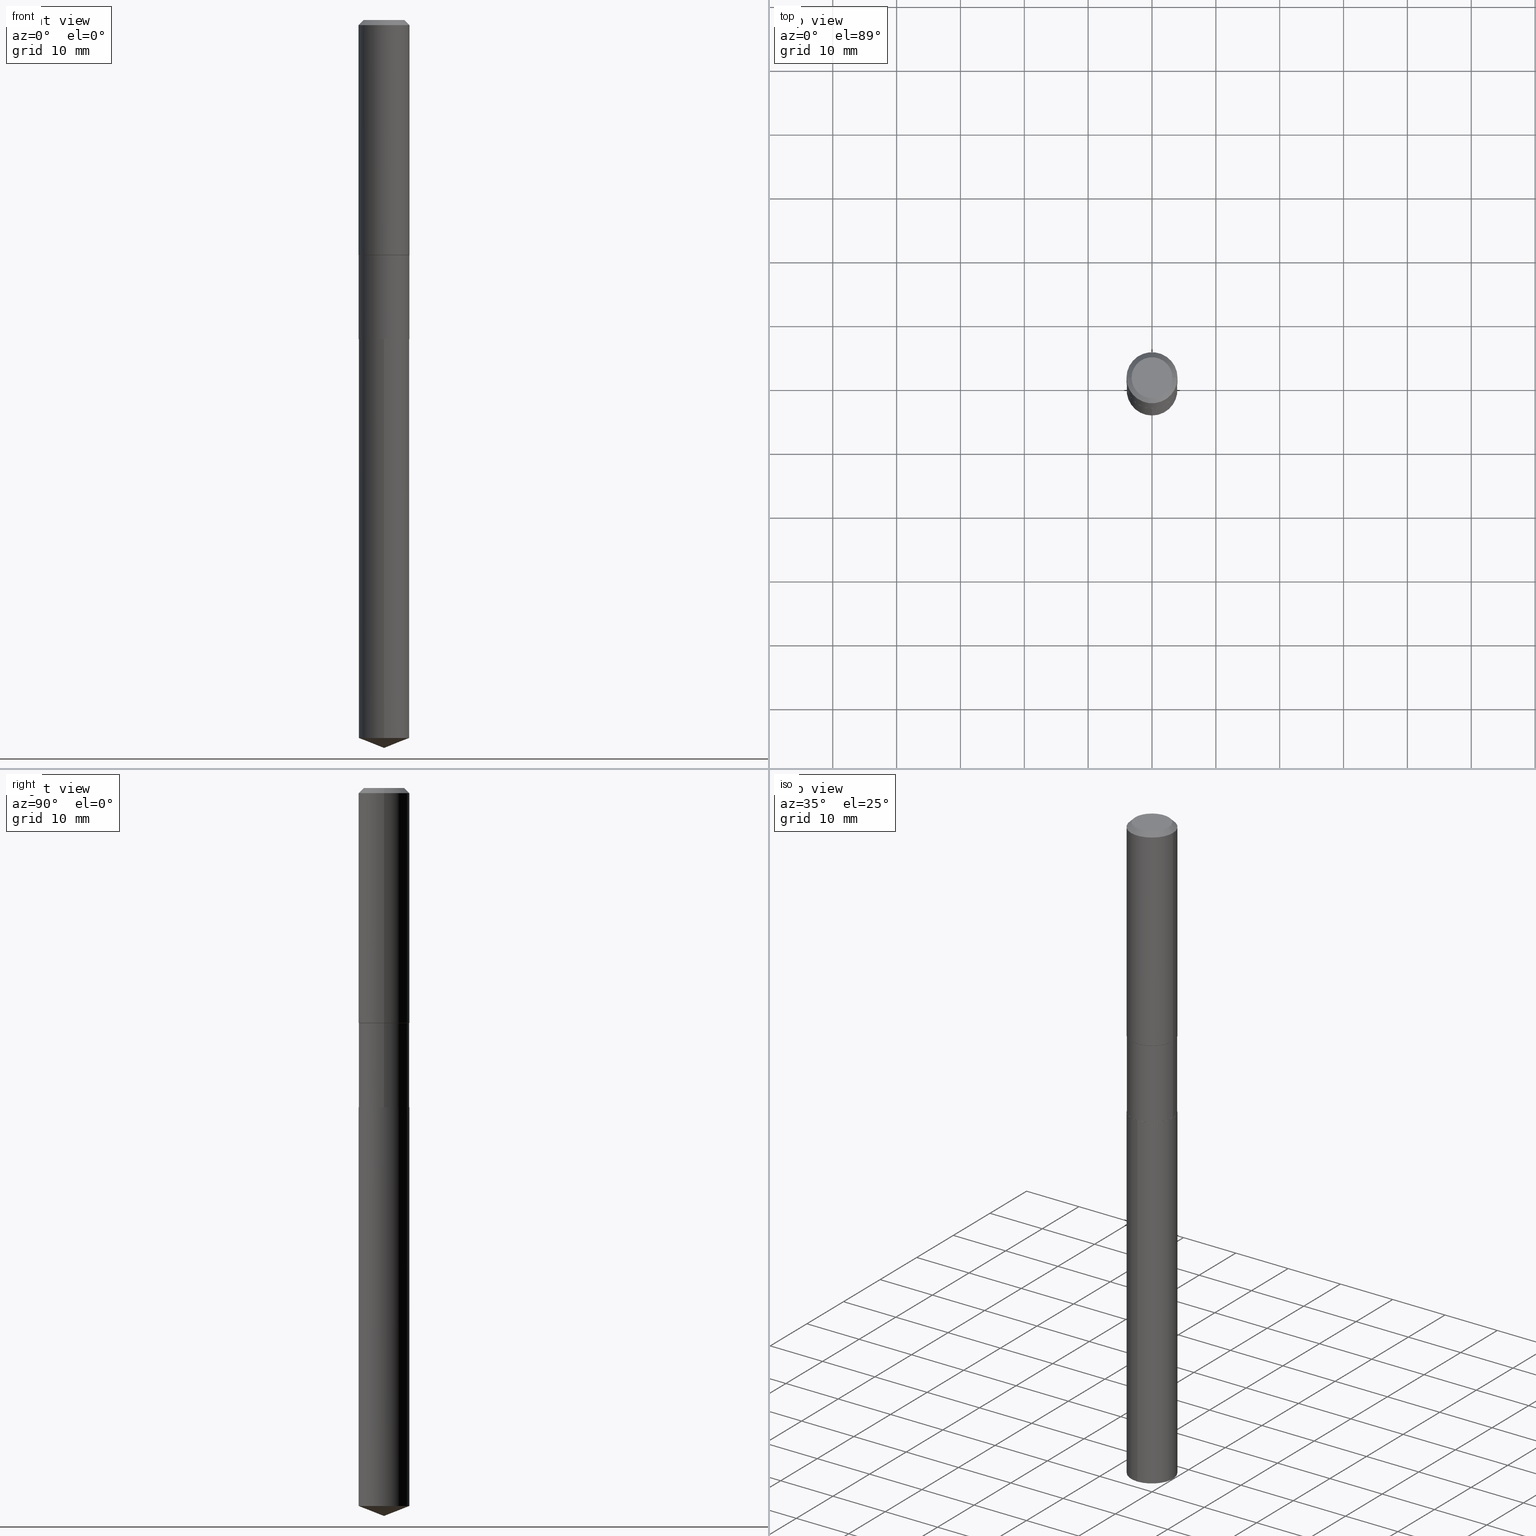
[diagram: canonical four-view strip — front | top / right | iso, engineering-drawing reading convention]
A machine part, canonical four-view strip (front | top / right | iso — engineering-drawing reading convention). The complete STEP part file that produces these views, byte-faithful:
ISO-10303-21;
HEADER;
FILE_DESCRIPTION (( 'STEP AP203' ),
    '1' );
FILE_NAME ('56487.STEP',
    '2024-04-24T18:13:18',
    ( '' ),
    ( '' ),
    'SwSTEP 2.0',
    'SolidWorks 2023',
    '' );
FILE_SCHEMA (( 'CONFIG_CONTROL_DESIGN' ));
ENDSEC;

DATA;
#1 = DIRECTION ( 'NONE',  ( -2.445468806185136597E-29, 3.491481338843145583E-15, 1.000000000000000000 ) ) ;
#2 = VERTEX_POINT ( 'NONE', #388 ) ;
#3 = EDGE_CURVE ( 'NONE', #343, #348, #150, .T. ) ;
#4 = DIRECTION ( 'NONE',  ( -2.445468806185136597E-29, 3.491481338843145583E-15, 1.000000000000000000 ) ) ;
#5 = EDGE_LOOP ( 'NONE', ( #121, #352, #232, #468 ) ) ;
#6 = AXIS2_PLACEMENT_3D ( 'NONE', #105, #255, #25 ) ;
#7 = AXIS2_PLACEMENT_3D ( 'NONE', #339, #1, #484 ) ;
#8 = CYLINDRICAL_SURFACE ( 'NONE', #56, 0.1575000000000000844 ) ;
#9 = ORIENTED_EDGE ( 'NONE', *, *, #473, .F. ) ;
#10 = CARTESIAN_POINT ( 'NONE',  ( 0.1575000000000000844, -1.099816621735587677E-15, 7.679978421878603638E-30 ) ) ;
#11 = EDGE_LOOP ( 'NONE', ( #278, #116, #176, #341 ) ) ;
#12 = APPLICATION_PROTOCOL_DEFINITION ( 'international standard', 'config_control_design', 1994, #412 ) ;
#13 = VERTEX_POINT ( 'NONE', #203 ) ;
#14 = AXIS2_PLACEMENT_3D ( 'NONE', #431, #248, #393 ) ;
#15 = CARTESIAN_POINT ( 'NONE',  ( 0.1575000000000000011, -1.190510096822576026E-15, -0.03150000000000019451 ) ) ;
#16 = CONICAL_SURFACE ( 'NONE', #153, 99.94676754584043010, 1.195550537616121067 ) ;
#17 = PERSON_AND_ORGANIZATION_ROLE ( 'creator' ) ;
#18 = DIRECTION ( 'NONE',  ( 2.445468806185136597E-29, -3.491481338843145583E-15, -1.000000000000000000 ) ) ;
#19 = CC_DESIGN_PERSON_AND_ORGANIZATION_ASSIGNMENT ( #130, #282, ( #467 ) ) ;
#20 = DATE_AND_TIME ( #141, #200 ) ;
#21 = ORIENTED_EDGE ( 'NONE', *, *, #321, .F. ) ;
#22 = FACE_OUTER_BOUND ( 'NONE', #199, .T. ) ;
#23 = APPROVAL_PERSON_ORGANIZATION ( #430, #334, #389 ) ;
#24 = DATE_AND_TIME ( #252, #281 ) ;
#25 = DIRECTION ( 'NONE',  ( 1.000000000000000000, -6.982962677686265922E-15, 0.000000000000000000 ) ) ;
#26 = CARTESIAN_POINT ( 'NONE',  ( -4.719860820353100843E-47, 6.738710358733633822E-33, 1.930043355456229866E-18 ) ) ;
#27 = PERSON_AND_ORGANIZATION ( #386, #447 ) ;
#28 = DIRECTION ( 'NONE',  ( -2.445468806185136597E-29, 3.491481338843145583E-15, 1.000000000000000000 ) ) ;
#29 = AXIS2_PLACEMENT_3D ( 'NONE', #26, #363, #111 ) ;
#30 = CARTESIAN_POINT ( 'NONE',  ( -1.091087918388430856E-15, -0.1562500000000068834, -1.968499999999999472 ) ) ;
#31 = EDGE_CURVE ( 'NONE', #268, #164, #279, .T. ) ;
#32 = DESIGN_CONTEXT ( 'detailed design', #428, 'design' ) ;
#33 = CARTESIAN_POINT ( 'NONE',  ( 4.813905344975440714E-29, -6.872981015512730918E-15, -1.968499999999999694 ) ) ;
#34 = ORIENTED_EDGE ( 'NONE', *, *, #271, .F. ) ;
#35 = DIRECTION ( 'NONE',  ( -2.445432706536183081E-29, 3.491533035595111543E-15, 1.000000000000000000 ) ) ;
#36 = ORIENTED_EDGE ( 'NONE', *, *, #57, .F. ) ;
#37 = CIRCLE ( 'NONE', #364, 0.1562500000000000000 ) ;
#38 = VECTOR ( 'NONE', #413, 39.37007874015748854 ) ;
#39 = DIRECTION ( 'NONE',  ( -2.445468806185136597E-29, 3.491481338843145583E-15, 1.000000000000000000 ) ) ;
#40 = EDGE_LOOP ( 'NONE', ( #201, #55, #168, #83 ) ) ;
#41 = EDGE_CURVE ( 'NONE', #238, #320, #481, .T. ) ;
#42 = DIRECTION ( 'NONE',  ( 1.000000000000000000, -6.982962677686267499E-15, 0.000000000000000000 ) ) ;
#43 = ORIENTED_EDGE ( 'NONE', *, *, #271, .T. ) ;
#44 = DIRECTION ( 'NONE',  ( -1.000000000000000000, 6.982962677686265922E-15, 0.000000000000000000 ) ) ;
#45 = ORIENTED_EDGE ( 'NONE', *, *, #448, .T. ) ;
#46 = VECTOR ( 'NONE', #267, 39.37007874015748143 ) ;
#47 = VECTOR ( 'NONE', #51, 39.37007874015748143 ) ;
#48 = ORIENTED_EDGE ( 'NONE', *, *, #390, .F. ) ;
#49 = DIRECTION ( 'NONE',  ( -2.445468806185136597E-29, 3.491481338843145583E-15, 1.000000000000000000 ) ) ;
#50 = CARTESIAN_POINT ( 'NONE',  ( 7.703226739483226971E-31, -1.099816621735597538E-16, -0.03150000000000019451 ) ) ;
#51 = DIRECTION ( 'NONE',  ( -0.7071067811865452413, 2.468850131082233000E-15, -0.7071067811865497932 ) ) ;
#52 = ORIENTED_EDGE ( 'NONE', *, *, #384, .T. ) ;
#53 = APPROVAL_DATE_TIME ( #392, #334 ) ;
#54 = AXIS2_PLACEMENT_3D ( 'NONE', #184, #402, #181 ) ;
#55 = ORIENTED_EDGE ( 'NONE', *, *, #112, .T. ) ;
#56 = AXIS2_PLACEMENT_3D ( 'NONE', #286, #319, #353 ) ;
#57 = EDGE_CURVE ( 'NONE', #2, #238, #205, .T. ) ;
#58 = LINE ( 'NONE', #209, #161 ) ;
#59 = APPROVAL_DATE_TIME ( #24, #399 ) ;
#60 = CARTESIAN_POINT ( 'NONE',  ( 1.110223024625264812E-15, 0.1562499999999845679, -4.426651488185166627 ) ) ;
#61 = PERSON_AND_ORGANIZATION_ROLE ( 'creator' ) ;
#62 = DIRECTION ( 'NONE',  ( -2.445432706536183081E-29, 3.491533035595111543E-15, 1.000000000000000000 ) ) ;
#63 = AXIS2_PLACEMENT_3D ( 'NONE', #154, #228, #84 ) ;
#64 = CC_DESIGN_APPROVAL ( #399, ( #233 ) ) ;
#65 = DIRECTION ( 'NONE',  ( 1.000000000000000000, -6.982962677686267499E-15, 4.876176775795936353E-29 ) ) ;
#66 = PERSON_AND_ORGANIZATION ( #386, #447 ) ;
#67 = PLANE ( 'NONE',  #29 ) ;
#68 = CARTESIAN_POINT ( 'NONE',  ( 4.813905344975440714E-29, -6.872981015512730918E-15, -1.968499999999999694 ) ) ;
#69 = AXIS2_PLACEMENT_3D ( 'NONE', #68, #223, #275 ) ;
#70 = LOCAL_TIME ( 14, 13, 18.00000000000000000, #104 ) ;
#71 = ADVANCED_FACE ( 'NONE', ( #323 ), #125, .T. ) ;
#72 = CARTESIAN_POINT ( 'NONE',  ( 4.813905344975441835E-29, -6.872981015512731707E-15, -1.968500000000000139 ) ) ;
#73 = ORIENTED_EDGE ( 'NONE', *, *, #306, .T. ) ;
#74 = DIRECTION ( 'NONE',  ( 2.445468806185136597E-29, -3.491481338843145583E-15, -1.000000000000000000 ) ) ;
#75 = EDGE_LOOP ( 'NONE', ( #34, #95, #21 ) ) ;
#76 = ADVANCED_BREP_SHAPE_REPRESENTATION ( '56487', ( #210, #362, #107 ), #129 ) ;
#77 = CARTESIAN_POINT ( 'NONE',  ( -0.1575000000000000011, -1.463631224553587220E-15, -0.03150000000000019451 ) ) ;
#78 = ADVANCED_FACE ( 'NONE', ( #208 ), #114, .T. ) ;
#79 = ORIENTED_EDGE ( 'NONE', *, *, #172, .T. ) ;
#80 = CLOSED_SHELL ( 'NONE', ( #251, #478, #351, #370, #288 ) ) ;
#81 = CIRCLE ( 'NONE', #357, 0.1260000000000000009 ) ;
#82 = DIRECTION ( 'NONE',  ( -6.982962677686265133E-15, -1.000000000000000000, 3.496765431890256920E-15 ) ) ;
#83 = ORIENTED_EDGE ( 'NONE', *, *, #456, .F. ) ;
#84 = DIRECTION ( 'NONE',  ( 6.982962677686265922E-15, 1.000000000000000000, -3.491533035595111149E-15 ) ) ;
#85 = ORIENTED_EDGE ( 'NONE', *, *, #473, .T. ) ;
#86 = LINE ( 'NONE', #462, #47 ) ;
#87 = EDGE_LOOP ( 'NONE', ( #9, #419, #457, #337 ) ) ;
#88 = CLOSED_SHELL ( 'NONE', ( #220, #78, #470, #236, #71, #182, #227, #132, #299, #146, #169, #358 ) ) ;
#89 = CC_DESIGN_PERSON_AND_ORGANIZATION_ASSIGNMENT ( #359, #17, ( #422 ) ) ;
#90 = VECTOR ( 'NONE', #396, 39.37007874015748143 ) ;
#91 = LOCAL_TIME ( 14, 13, 18.00000000000000000, #171 ) ;
#92 = DIRECTION ( 'NONE',  ( 0.000000000000000000, 0.000000000000000000, 1.000000000000000000 ) ) ;
#93 = DIRECTION ( 'NONE',  ( -2.445432706536183362E-29, 3.491533035595111149E-15, 1.000000000000000000 ) ) ;
#94 = LENGTH_MEASURE_WITH_UNIT ( LENGTH_MEASURE( 0.02539999999999999897 ), #355 );
#95 = ORIENTED_EDGE ( 'NONE', *, *, #96, .T. ) ;
#96 = EDGE_CURVE ( 'NONE', #159, #268, #100, .T. ) ;
#97 = ORIENTED_EDGE ( 'NONE', *, *, #41, .T. ) ;
#98 = LINE ( 'NONE', #346, #145 ) ;
#99 = AXIS2_PLACEMENT_3D ( 'NONE', #270, #35, #189 ) ;
#100 = LINE ( 'NONE', #135, #300 ) ;
#101 = PERSON_AND_ORGANIZATION ( #386, #447 ) ;
#102 = DIRECTION ( 'NONE',  ( -2.445468806185136597E-29, 3.491481338843145583E-15, 1.000000000000000000 ) ) ;
#103 = DIRECTION ( 'NONE',  ( 1.000000000000000000, -6.982962677686267499E-15, 0.000000000000000000 ) ) ;
#104 = COORDINATED_UNIVERSAL_TIME_OFFSET ( 5, 0, .BEHIND. ) ;
#105 = CARTESIAN_POINT ( 'NONE',  ( 4.813905344975441835E-29, -6.872981015512731707E-15, -1.968500000000000139 ) ) ;
#106 = CONICAL_SURFACE ( 'NONE', #99, 99.94676754584043010, 1.195550537616121067 ) ;
#107 = AXIS2_PLACEMENT_3D ( 'NONE', #165, #92, #167 ) ;
#108 = COORDINATED_UNIVERSAL_TIME_OFFSET ( 5, 0, .BEHIND. ) ;
#109 = DIRECTION ( 'NONE',  ( 1.000000000000000000, -6.982962677686269077E-15, 0.000000000000000000 ) ) ;
#110 = CALENDAR_DATE ( 2024, 24, 4 ) ;
#111 = DIRECTION ( 'NONE',  ( -1.000000000000000000, 6.982962677686265922E-15, -4.876176775795935793E-29 ) ) ;
#112 = EDGE_CURVE ( 'NONE', #429, #320, #433, .T. ) ;
#113 = CARTESIAN_POINT ( 'NONE',  ( -1.091087918388370902E-15, -0.1562500000000154876, -4.426651488185164851 ) ) ;
#114 = CONICAL_SURFACE ( 'NONE', #136, 0.1575000000000000011, 0.7853981633974450594 ) ;
#115 = CARTESIAN_POINT ( 'NONE',  ( 0.1562499999999999722, -1.091087918388478976E-15, 7.619026212181148976E-30 ) ) ;
#116 = ORIENTED_EDGE ( 'NONE', *, *, #376, .T. ) ;
#117 = DIRECTION ( 'NONE',  ( -2.445468806185136597E-29, 3.491481338843145583E-15, 1.000000000000000000 ) ) ;
#118 = EDGE_CURVE ( 'NONE', #155, #196, #58, .T. ) ;
#119 = ORIENTED_EDGE ( 'NONE', *, *, #3, .T. ) ;
#120 = CARTESIAN_POINT ( 'NONE',  ( 4.813905344975441835E-29, -6.872981015512731707E-15, -1.968500000000000139 ) ) ;
#121 = ORIENTED_EDGE ( 'NONE', *, *, #112, .F. ) ;
#122 = CIRCLE ( 'NONE', #185, 0.1562500000000000000 ) ;
#123 = CARTESIAN_POINT ( 'NONE',  ( 1.082514939180403819E-28, -1.545569814300852243E-14, -4.426651488185165739 ) ) ;
#124 = ORIENTED_EDGE ( 'NONE', *, *, #126, .T. ) ;
#125 = CYLINDRICAL_SURFACE ( 'NONE', #14, 0.1562499999999999722 ) ;
#126 = EDGE_CURVE ( 'NONE', #164, #345, #293, .T. ) ;
#127 = DIRECTION ( 'NONE',  ( 1.000000000000000000, -6.982962677686265133E-15, 0.000000000000000000 ) ) ;
#128 = VECTOR ( 'NONE', #285, 39.37007874015748143 ) ;
#129 =( GEOMETRIC_REPRESENTATION_CONTEXT ( 3 ) GLOBAL_UNCERTAINTY_ASSIGNED_CONTEXT ( ( #230 ) ) GLOBAL_UNIT_ASSIGNED_CONTEXT ( ( #311, #247, #458 ) ) REPRESENTATION_CONTEXT ( 'NONE', 'WORKASPACE' ) );
#130 = PERSON_AND_ORGANIZATION ( #386, #447 ) ;
#131 = VERTEX_POINT ( 'NONE', #60 ) ;
#132 = ADVANCED_FACE ( 'NONE', ( #213 ), #400, .T. ) ;
#133 = ORIENTED_EDGE ( 'NONE', *, *, #315, .T. ) ;
#134 = COORDINATED_UNIVERSAL_TIME_OFFSET ( 5, 0, .BEHIND. ) ;
#135 = CARTESIAN_POINT ( 'NONE',  ( 1.059413427739936133E-28, -1.621696641351180164E-14, -4.488199999999999079 ) ) ;
#136 = AXIS2_PLACEMENT_3D ( 'NONE', #360, #18, #471 ) ;
#137 = LOCAL_TIME ( 14, 13, 18.00000000000000000, #324 ) ;
#138 = DIRECTION ( 'NONE',  ( -2.445432706536183081E-29, 3.491533035595111543E-15, 1.000000000000000000 ) ) ;
#139 = CARTESIAN_POINT ( 'NONE',  ( 0.000000000000000000, 0.000000000000000000, 0.000000000000000000 ) ) ;
#140 = CARTESIAN_POINT ( 'NONE',  ( -0.1260000000000000009, 9.348441284752484904E-16, 3.860086710906114178E-18 ) ) ;
#141 = CALENDAR_DATE ( 2024, 24, 4 ) ;
#142 = VECTOR ( 'NONE', #93, 39.37007874015748143 ) ;
#143 = CARTESIAN_POINT ( 'NONE',  ( 3.540916557915768252E-29, -5.055490404577932161E-15, -1.447949999999999848 ) ) ;
#144 = AXIS2_PLACEMENT_3D ( 'NONE', #221, #102, #65 ) ;
#145 = VECTOR ( 'NONE', #427, 39.37007874015748143 ) ;
#146 = ADVANCED_FACE ( 'NONE', ( #435 ), #67, .F. ) ;
#147 = CARTESIAN_POINT ( 'NONE',  ( 0.1575000000000000011, -1.209798283909146741E-15, -0.03150000000000019451 ) ) ;
#148 = CARTESIAN_POINT ( 'NONE',  ( -0.1562499999999999445, -4.855321990922242113E-15, -1.449200000000000044 ) ) ;
#149 = CARTESIAN_POINT ( 'NONE',  ( 1.110223024625265009E-15, 0.1562499999999931444, -1.968500000000000583 ) ) ;
#150 = CIRCLE ( 'NONE', #190, 0.1562499999999999445 ) ;
#151 = EDGE_LOOP ( 'NONE', ( #410, #173, #97, #450 ) ) ;
#152 = AXIS2_PLACEMENT_3D ( 'NONE', #417, #4, #158 ) ;
#153 = AXIS2_PLACEMENT_3D ( 'NONE', #432, #284, #466 ) ;
#154 = CARTESIAN_POINT ( 'NONE',  ( 2.410585102067159081E-29, -1.031467239185071540E-14, -1.968500000000000139 ) ) ;
#155 = VERTEX_POINT ( 'NONE', #291 ) ;
#156 = CARTESIAN_POINT ( 'NONE',  ( -0.1575000000000001676, -3.936385595755772191E-15, -1.447949999999999848 ) ) ;
#157 = EDGE_LOOP ( 'NONE', ( #79, #85, #325, #235 ) ) ;
#158 = DIRECTION ( 'NONE',  ( 1.000000000000000000, -6.982962677686265133E-15, 0.000000000000000000 ) ) ;
#159 = VERTEX_POINT ( 'NONE', #442 ) ;
#160 = CONICAL_SURFACE ( 'NONE', #206, 0.1562499999999999445, 0.7853981633974755905 ) ;
#161 = VECTOR ( 'NONE', #361, 39.37007874015748143 ) ;
#162 = LINE ( 'NONE', #202, #326 ) ;
#163 = EDGE_CURVE ( 'NONE', #2, #239, #81, .T. ) ;
#164 = VERTEX_POINT ( 'NONE', #30 ) ;
#165 = CARTESIAN_POINT ( 'NONE',  ( 0.000000000000000000, 0.000000000000000000, 0.000000000000000000 ) ) ;
#166 = CARTESIAN_POINT ( 'NONE',  ( 3.543973393923499695E-29, -5.059854756251485526E-15, -1.449200000000000044 ) ) ;
#167 = DIRECTION ( 'NONE',  ( 1.000000000000000000, 0.000000000000000000, 0.000000000000000000 ) ) ;
#168 = ORIENTED_EDGE ( 'NONE', *, *, #41, .F. ) ;
#169 = ADVANCED_FACE ( 'NONE', ( #22 ), #438, .F. ) ;
#170 = VECTOR ( 'NONE', #395, 39.37007874015748143 ) ;
#171 = COORDINATED_UNIVERSAL_TIME_OFFSET ( 5, 0, .BEHIND. ) ;
#172 = EDGE_CURVE ( 'NONE', #268, #131, #37, .T. ) ;
#173 = ORIENTED_EDGE ( 'NONE', *, *, #57, .T. ) ;
#174 = DIRECTION ( 'NONE',  ( -2.445468806185136597E-29, 3.491481338843145583E-15, 1.000000000000000000 ) ) ;
#175 = APPROVAL_STATUS ( 'not_yet_approved' ) ;
#176 = ORIENTED_EDGE ( 'NONE', *, *, #118, .T. ) ;
#177 = AXIS2_PLACEMENT_3D ( 'NONE', #186, #179, #371 ) ;
#178 = EDGE_CURVE ( 'NONE', #196, #13, #416, .T. ) ;
#179 = DIRECTION ( 'NONE',  ( -2.438088387897960049E-29, 3.491481338843145188E-15, 1.000000000000000000 ) ) ;
#180 = FACE_OUTER_BOUND ( 'NONE', #452, .T. ) ;
#181 = DIRECTION ( 'NONE',  ( 1.000000000000000000, -6.982962677686265133E-15, 0.000000000000000000 ) ) ;
#182 = ADVANCED_FACE ( 'NONE', ( #290 ), #476, .T. ) ;
#183 = PERSON_AND_ORGANIZATION ( #386, #447 ) ;
#184 = CARTESIAN_POINT ( 'NONE',  ( 3.543973393923499695E-29, -5.059854756251485526E-15, -1.449200000000000044 ) ) ;
#185 = AXIS2_PLACEMENT_3D ( 'NONE', #123, #335, #483 ) ;
#186 = CARTESIAN_POINT ( 'NONE',  ( -8.165768403937443832E-32, -1.377846130511542693E-14, -1.968499999999999694 ) ) ;
#187 = DIRECTION ( 'NONE',  ( -2.445432706536183081E-29, 3.491533035595111543E-15, 1.000000000000000000 ) ) ;
#188 = EDGE_LOOP ( 'NONE', ( #124, #133 ) ) ;
#189 = DIRECTION ( 'NONE',  ( -6.982962677686265922E-15, -1.000000000000000000, 3.498627837349988051E-15 ) ) ;
#190 = AXIS2_PLACEMENT_3D ( 'NONE', #166, #460, #127 ) ;
#191 = ORIENTED_EDGE ( 'NONE', *, *, #441, .T. ) ;
#192 = CIRCLE ( 'NONE', #487, 0.1575000000000000011 ) ;
#193 = DIRECTION ( 'NONE',  ( -2.445432706536183081E-29, 3.491533035595111543E-15, 1.000000000000000000 ) ) ;
#194 = ORIENTED_EDGE ( 'NONE', *, *, #118, .F. ) ;
#195 = DIRECTION ( 'NONE',  ( 1.000000000000000000, -6.982962677686265922E-15, 4.876281427513067258E-29 ) ) ;
#196 = VERTEX_POINT ( 'NONE', #437 ) ;
#197 = EDGE_CURVE ( 'NONE', #383, #13, #369, .T. ) ;
#198 = FACE_OUTER_BOUND ( 'NONE', #40, .T. ) ;
#199 = EDGE_LOOP ( 'NONE', ( #229, #490 ) ) ;
#200 = LOCAL_TIME ( 14, 13, 18.00000000000000000, #134 ) ;
#201 = ORIENTED_EDGE ( 'NONE', *, *, #211, .T. ) ;
#202 = CARTESIAN_POINT ( 'NONE',  ( -0.1562499999999999445, -3.949631731626329774E-15, -1.449200000000000044 ) ) ;
#203 = CARTESIAN_POINT ( 'NONE',  ( -0.1562500000000000000, -4.855321990922240535E-15, -1.968000000000000194 ) ) ;
#204 = LINE ( 'NONE', #10, #170 ) ;
#205 = LINE ( 'NONE', #15, #128 ) ;
#206 = AXIS2_PLACEMENT_3D ( 'NONE', #328, #477, #444 ) ;
#207 = CIRCLE ( 'NONE', #274, 0.1557499999999999996 ) ;
#208 = FACE_OUTER_BOUND ( 'NONE', #151, .T. ) ;
#209 = CARTESIAN_POINT ( 'NONE',  ( 0.1557499999999999996, -7.960577452562368662E-15, -1.968500000000000139 ) ) ;
#210 = MANIFOLD_SOLID_BREP ( 'Body-Move/Copy2[1]', #80 ) ;
#211 = EDGE_CURVE ( 'NONE', #303, #429, #280, .T. ) ;
#212 = DATE_TIME_ROLE ( 'classification_date' ) ;
#213 = FACE_OUTER_BOUND ( 'NONE', #5, .T. ) ;
#214 = AXIS2_PLACEMENT_3D ( 'NONE', #397, #138, #367 ) ;
#215 = APPROVAL_STATUS ( 'not_yet_approved' ) ;
#216 = CIRCLE ( 'NONE', #7, 0.1557499999999999996 ) ;
#217 = DIRECTION ( 'NONE',  ( -2.445468806185136597E-29, 3.491481338843145583E-15, 1.000000000000000000 ) ) ;
#218 = APPROVAL_ROLE ( '' ) ;
#219 = DIRECTION ( 'NONE',  ( -0.7071067811866199593, 7.493145998870616062E-15, 0.7071067811864750752 ) ) ;
#220 = ADVANCED_FACE ( 'NONE', ( #260 ), #273, .T. ) ;
#221 = CARTESIAN_POINT ( 'NONE',  ( 0.000000000000000000, 0.000000000000000000, 0.000000000000000000 ) ) ;
#222 = AXIS2_PLACEMENT_3D ( 'NONE', #143, #28, #103 ) ;
#223 = DIRECTION ( 'NONE',  ( -2.445432706536183081E-29, 3.491533035595111543E-15, 1.000000000000000000 ) ) ;
#224 = DIRECTION ( 'NONE',  ( 1.000000000000000000, -6.982962677686265922E-15, 0.000000000000000000 ) ) ;
#225 = ORIENTED_EDGE ( 'NONE', *, *, #96, .F. ) ;
#226 = PRODUCT_RELATED_PRODUCT_CATEGORY ( 'detail', '', ( #467 ) ) ;
#227 = ADVANCED_FACE ( 'NONE', ( #180 ), #160, .T. ) ;
#228 = DIRECTION ( 'NONE',  ( 2.445432706536183081E-29, -3.491533035595111149E-15, -1.000000000000000000 ) ) ;
#229 = ORIENTED_EDGE ( 'NONE', *, *, #384, .F. ) ;
#230 = UNCERTAINTY_MEASURE_WITH_UNIT (LENGTH_MEASURE( 1.000000000000000082E-05 ), #311, 'distance_accuracy_value', 'NONE');
#231 = CARTESIAN_POINT ( 'NONE',  ( -9.439721640706201686E-47, 1.347742071746726764E-32, 3.860086710912459732E-18 ) ) ;
#232 = ORIENTED_EDGE ( 'NONE', *, *, #456, .T. ) ;
#233 = PRODUCT_DEFINITION_FORMATION_WITH_SPECIFIED_SOURCE ( 'ANY', '', #467, .NOT_KNOWN. ) ;
#234 = DIRECTION ( 'NONE',  ( -2.445468806185136597E-29, 3.491481338843145583E-15, 1.000000000000000000 ) ) ;
#235 = ORIENTED_EDGE ( 'NONE', *, *, #31, .F. ) ;
#236 = ADVANCED_FACE ( 'NONE', ( #259 ), #434, .T. ) ;
#237 = CARTESIAN_POINT ( 'NONE',  ( 1.136388109178841584E-28, -1.512422719709166444E-14, -4.488199999999999079 ) ) ;
#238 = VERTEX_POINT ( 'NONE', #147 ) ;
#239 = VERTEX_POINT ( 'NONE', #140 ) ;
#240 = CIRCLE ( 'NONE', #463, 0.1562500000000000000 ) ;
#241 = CIRCLE ( 'NONE', #440, 0.1562500000000000000 ) ;
#242 = APPLICATION_PROTOCOL_DEFINITION ( 'international standard', 'config_control_design', 1994, #428 ) ;
#243 = ORIENTED_EDGE ( 'NONE', *, *, #404, .F. ) ;
#244 = EDGE_CURVE ( 'NONE', #320, #238, #192, .T. ) ;
#245 = CARTESIAN_POINT ( 'NONE',  ( 4.812682610572349594E-29, -6.871235274843310993E-15, -1.968000000000000194 ) ) ;
#246 = CARTESIAN_POINT ( 'NONE',  ( -1.091087918388430856E-15, -0.1562500000000068834, -1.968499999999999250 ) ) ;
#247 =( NAMED_UNIT ( * ) PLANE_ANGLE_UNIT ( ) SI_UNIT ( $, .RADIAN. ) );
#248 = DIRECTION ( 'NONE',  ( -2.445468806185136597E-29, 3.491481338843145583E-15, 1.000000000000000000 ) ) ;
#249 = AXIS2_PLACEMENT_3D ( 'NONE', #72, #342, #224 ) ;
#250 = CARTESIAN_POINT ( 'NONE',  ( -0.1575000000000000844, 1.119104808822158392E-15, -7.747322767151481189E-30 ) ) ;
#251 = ADVANCED_FACE ( 'NONE', ( #262 ), #405, .T. ) ;
#252 = CALENDAR_DATE ( 2024, 24, 4 ) ;
#253 = DIRECTION ( 'NONE',  ( 1.000000000000000000, -6.982962677686265922E-15, 4.876281427513067258E-29 ) ) ;
#254 = CALENDAR_DATE ( 2024, 24, 4 ) ;
#255 = DIRECTION ( 'NONE',  ( -2.445468806185136597E-29, 3.491481338843145583E-15, 1.000000000000000000 ) ) ;
#256 = PERSON_AND_ORGANIZATION ( #386, #447 ) ;
#257 = EDGE_CURVE ( 'NONE', #13, #343, #336, .T. ) ;
#258 = AXIS2_PLACEMENT_3D ( 'NONE', #33, #187, #82 ) ;
#259 = FACE_OUTER_BOUND ( 'NONE', #378, .T. ) ;
#260 = FACE_OUTER_BOUND ( 'NONE', #423, .T. ) ;
#261 = SHAPE_DEFINITION_REPRESENTATION ( #287, #76 ) ;
#262 = FACE_OUTER_BOUND ( 'NONE', #157, .T. ) ;
#263 = VECTOR ( 'NONE', #489, 39.37007874015748143 ) ;
#264 = CARTESIAN_POINT ( 'NONE',  ( 7.703226739483226971E-31, -1.099816621735597538E-16, -0.03150000000000019451 ) ) ;
#265 = ORIENTED_EDGE ( 'NONE', *, *, #178, .T. ) ;
#266 = EDGE_CURVE ( 'NONE', #348, #343, #475, .T. ) ;
#267 = DIRECTION ( 'NONE',  ( -2.445468806185136877E-29, 3.491481338843145188E-15, 1.000000000000000000 ) ) ;
#268 = VERTEX_POINT ( 'NONE', #113 ) ;
#269 = CARTESIAN_POINT ( 'NONE',  ( 0.1562499999999999445, -6.150942674639964699E-15, -1.449200000000000044 ) ) ;
#270 = CARTESIAN_POINT ( 'NONE',  ( -8.530121607445128932E-28, 1.217913337299388876E-13, 34.88187874015748235 ) ) ;
#271 = EDGE_CURVE ( 'NONE', #159, #131, #420, .T. ) ;
#272 = ORIENTED_EDGE ( 'NONE', *, *, #257, .T. ) ;
#273 = CONICAL_SURFACE ( 'NONE', #6, 0.1557499999999999996, 0.7853981633975507526 ) ;
#274 = AXIS2_PLACEMENT_3D ( 'NONE', #120, #117, #379 ) ;
#275 = DIRECTION ( 'NONE',  ( -6.982962677686265133E-15, -1.000000000000000000, 3.496765431890256920E-15 ) ) ;
#276 = ORIENTED_EDGE ( 'NONE', *, *, #3, .F. ) ;
#277 = DIRECTION ( 'NONE',  ( -0.7071067811865666686, 7.493145998870422002E-15, 0.7071067811865281438 ) ) ;
#278 = ORIENTED_EDGE ( 'NONE', *, *, #197, .F. ) ;
#279 = LINE ( 'NONE', #246, #142 ) ;
#280 = CIRCLE ( 'NONE', #222, 0.1575000000000001676 ) ;
#281 = LOCAL_TIME ( 14, 13, 18.00000000000000000, #108 ) ;
#282 = PERSON_AND_ORGANIZATION_ROLE ( 'design_owner' ) ;
#283 = ORIENTED_EDGE ( 'NONE', *, *, #461, .F. ) ;
#284 = DIRECTION ( 'NONE',  ( -2.445432706536183081E-29, 3.491533035595111543E-15, 1.000000000000000000 ) ) ;
#285 = DIRECTION ( 'NONE',  ( 0.7071067811865452413, -7.319954787623248157E-15, -0.7071067811865497932 ) ) ;
#286 = CARTESIAN_POINT ( 'NONE',  ( 0.000000000000000000, 0.000000000000000000, 0.000000000000000000 ) ) ;
#287 = PRODUCT_DEFINITION_SHAPE ( 'NONE', 'NONE',  #422 ) ;
#288 = ADVANCED_FACE ( 'NONE', ( #372 ), #453, .F. ) ;
#289 = DIRECTION ( 'NONE',  ( -6.497071151882123780E-15, -0.9304175679820252398, 0.3665012267242956367 ) ) ;
#290 = FACE_OUTER_BOUND ( 'NONE', #486, .T. ) ;
#291 = CARTESIAN_POINT ( 'NONE',  ( 0.1557499999999999996, -7.960577452562368662E-15, -1.968500000000000139 ) ) ;
#292 = CARTESIAN_POINT ( 'NONE',  ( 4.812682610572349594E-29, -6.871235274843310993E-15, -1.968000000000000194 ) ) ;
#293 = CIRCLE ( 'NONE', #214, 0.1562500000000000000 ) ;
#294 = PERSON_AND_ORGANIZATION_ROLE ( 'design_supplier' ) ;
#295 = DIRECTION ( 'NONE',  ( -2.445468806185136597E-29, 3.491481338843145583E-15, 1.000000000000000000 ) ) ;
#296 = PERSON_AND_ORGANIZATION_ROLE ( 'classification_officer' ) ;
#297 = DIRECTION ( 'NONE',  ( 1.000000000000000000, -6.982962677686265922E-15, 0.000000000000000000 ) ) ;
#298 = CARTESIAN_POINT ( 'NONE',  ( 0.1562499999999999445, -6.150942674639964699E-15, -1.449200000000000044 ) ) ;
#299 = ADVANCED_FACE ( 'NONE', ( #445 ), #338, .T. ) ;
#300 = VECTOR ( 'NONE', #289, 39.37007874015748854 ) ;
#301 = CARTESIAN_POINT ( 'NONE',  ( -0.1557499999999999996, -5.763661477392264864E-15, -1.968500000000000139 ) ) ;
#302 = CIRCLE ( 'NONE', #418, 0.1575000000000001676 ) ;
#303 = VERTEX_POINT ( 'NONE', #377 ) ;
#304 = FACE_OUTER_BOUND ( 'NONE', #11, .T. ) ;
#305 = ORIENTED_EDGE ( 'NONE', *, *, #257, .F. ) ;
#306 = EDGE_CURVE ( 'NONE', #196, #348, #309, .T. ) ;
#307 = CARTESIAN_POINT ( 'NONE',  ( 3.540916557915768252E-29, -5.055490404577932161E-15, -1.447949999999999848 ) ) ;
#308 = ORIENTED_EDGE ( 'NONE', *, *, #266, .T. ) ;
#309 = LINE ( 'NONE', #115, #46 ) ;
#310 = EDGE_LOOP ( 'NONE', ( #265, #272, #464, #354 ) ) ;
#311 =( CONVERSION_BASED_UNIT ( 'INCH', #94 ) LENGTH_UNIT ( ) NAMED_UNIT ( #426 ) );
#312 = APPROVAL ( #175, 'UNSPECIFIED' ) ;
#313 = MECHANICAL_CONTEXT ( 'NONE', #412, 'mechanical' ) ;
#314 = ORIENTED_EDGE ( 'NONE', *, *, #461, .T. ) ;
#315 = EDGE_CURVE ( 'NONE', #345, #164, #240, .T. ) ;
#316 = ORIENTED_EDGE ( 'NONE', *, *, #172, .F. ) ;
#317 = AXIS2_PLACEMENT_3D ( 'NONE', #139, #217, #480 ) ;
#318 = APPROVAL_PERSON_ORGANIZATION ( #256, #312, #332 ) ;
#319 = DIRECTION ( 'NONE',  ( -2.445468806185136597E-29, 3.491481338843145583E-15, 1.000000000000000000 ) ) ;
#320 = VERTEX_POINT ( 'NONE', #77 ) ;
#321 = EDGE_CURVE ( 'NONE', #131, #268, #122, .T. ) ;
#322 = FACE_OUTER_BOUND ( 'NONE', #375, .T. ) ;
#323 = FACE_OUTER_BOUND ( 'NONE', #310, .T. ) ;
#324 = COORDINATED_UNIVERSAL_TIME_OFFSET ( 5, 0, .BEHIND. ) ;
#325 = ORIENTED_EDGE ( 'NONE', *, *, #126, .F. ) ;
#326 = VECTOR ( 'NONE', #277, 39.37007874015748854 ) ;
#327 = DIRECTION ( 'NONE',  ( -2.445468806185136597E-29, 3.491481338843145583E-15, 1.000000000000000000 ) ) ;
#328 = CARTESIAN_POINT ( 'NONE',  ( 3.543973393923499695E-29, -5.059854756251485526E-15, -1.449200000000000044 ) ) ;
#329 = DATE_TIME_ROLE ( 'creation_date' ) ;
#330 = DIRECTION ( 'NONE',  ( -2.445468806185136597E-29, 3.491481338843145583E-15, 1.000000000000000000 ) ) ;
#331 = AXIS2_PLACEMENT_3D ( 'NONE', #292, #327, #109 ) ;
#332 = APPROVAL_ROLE ( '' ) ;
#333 = CARTESIAN_POINT ( 'NONE',  ( 7.703226739483226971E-31, -1.099816621735597538E-16, -0.03150000000000019451 ) ) ;
#334 = APPROVAL ( #387, 'UNSPECIFIED' ) ;
#335 = DIRECTION ( 'NONE',  ( -2.445432706536183081E-29, 3.491533035595111543E-15, 1.000000000000000000 ) ) ;
#336 = LINE ( 'NONE', #344, #347 ) ;
#337 = ORIENTED_EDGE ( 'NONE', *, *, #315, .F. ) ;
#338 = CONICAL_SURFACE ( 'NONE', #446, 0.1575000000000000011, 0.7853981633974450594 ) ;
#339 = CARTESIAN_POINT ( 'NONE',  ( 4.813905344975441835E-29, -6.872981015512731707E-15, -1.968500000000000139 ) ) ;
#340 = SECURITY_CLASSIFICATION ( '', '', #368 ) ;
#341 = ORIENTED_EDGE ( 'NONE', *, *, #448, .F. ) ;
#342 = DIRECTION ( 'NONE',  ( -2.445468806185136597E-29, 3.491481338843145583E-15, 1.000000000000000000 ) ) ;
#343 = VERTEX_POINT ( 'NONE', #148 ) ;
#344 = CARTESIAN_POINT ( 'NONE',  ( -0.1562499999999999722, 1.110223024625156343E-15, -7.685836078523288357E-30 ) ) ;
#345 = VERTEX_POINT ( 'NONE', #149 ) ;
#346 = CARTESIAN_POINT ( 'NONE',  ( 1.110223024625204464E-15, 0.1562499999999931444, -1.968500000000000361 ) ) ;
#347 = VECTOR ( 'NONE', #374, 39.37007874015748143 ) ;
#348 = VERTEX_POINT ( 'NONE', #298 ) ;
#349 = CC_DESIGN_APPROVAL ( #334, ( #422 ) ) ;
#350 = DIRECTION ( 'NONE',  ( 1.000000000000000000, -6.982962677686269077E-15, 0.000000000000000000 ) ) ;
#351 = ADVANCED_FACE ( 'NONE', ( #407 ), #106, .T. ) ;
#352 = ORIENTED_EDGE ( 'NONE', *, *, #436, .T. ) ;
#353 = DIRECTION ( 'NONE',  ( 1.000000000000000000, -6.982962677686267499E-15, 4.876176775795936353E-29 ) ) ;
#354 = ORIENTED_EDGE ( 'NONE', *, *, #306, .F. ) ;
#355 =( LENGTH_UNIT ( ) NAMED_UNIT ( * ) SI_UNIT ( $, .METRE. ) );
#356 = EDGE_LOOP ( 'NONE', ( #36, #243, #191, #459 ) ) ;
#357 = AXIS2_PLACEMENT_3D ( 'NONE', #474, #295, #253 ) ;
#358 = ADVANCED_FACE ( 'NONE', ( #304 ), #439, .T. ) ;
#359 = PERSON_AND_ORGANIZATION ( #386, #447 ) ;
#360 = CARTESIAN_POINT ( 'NONE',  ( 7.703226739483226971E-31, -1.099816621735597538E-16, -0.03150000000000019451 ) ) ;
#361 = DIRECTION ( 'NONE',  ( 0.7071067811866199593, -2.468850131083015945E-15, 0.7071067811864750752 ) ) ;
#362 = MANIFOLD_SOLID_BREP ( 'Body-Move/Copy2[2]', #88 ) ;
#363 = DIRECTION ( 'NONE',  ( 2.438088387897960049E-29, -3.491481338843145188E-15, -1.000000000000000000 ) ) ;
#364 = AXIS2_PLACEMENT_3D ( 'NONE', #365, #62, #403 ) ;
#365 = CARTESIAN_POINT ( 'NONE',  ( 1.082514939180403819E-28, -1.545569814300852243E-14, -4.426651488185165739 ) ) ;
#366 = APPROVAL_DATE_TIME ( #472, #312 ) ;
#367 = DIRECTION ( 'NONE',  ( -6.982962677686265133E-15, -1.000000000000000000, 3.496765431890256920E-15 ) ) ;
#368 = SECURITY_CLASSIFICATION_LEVEL ( 'unclassified' ) ;
#369 = LINE ( 'NONE', #482, #394 ) ;
#370 = ADVANCED_FACE ( 'NONE', ( #409 ), #451, .T. ) ;
#371 = DIRECTION ( 'NONE',  ( 1.000000000000000000, -6.982962677686265922E-15, 4.876176775795935793E-29 ) ) ;
#372 = FACE_OUTER_BOUND ( 'NONE', #188, .T. ) ;
#373 = ORIENTED_EDGE ( 'NONE', *, *, #404, .T. ) ;
#374 = DIRECTION ( 'NONE',  ( -2.445468806185136877E-29, 3.491481338843145188E-15, 1.000000000000000000 ) ) ;
#375 = EDGE_LOOP ( 'NONE', ( #225, #43, #316 ) ) ;
#376 = EDGE_CURVE ( 'NONE', #383, #155, #216, .T. ) ;
#377 = CARTESIAN_POINT ( 'NONE',  ( 0.1575000000000001676, -6.155307026313519641E-15, -1.447949999999999848 ) ) ;
#378 = EDGE_LOOP ( 'NONE', ( #308, #314, #414, #48 ) ) ;
#379 = DIRECTION ( 'NONE',  ( 1.000000000000000000, -6.982962677686265922E-15, 0.000000000000000000 ) ) ;
#380 = ORIENTED_EDGE ( 'NONE', *, *, #436, .F. ) ;
#381 = CARTESIAN_POINT ( 'NONE',  ( 4.813905344975441835E-29, -6.872981015512731707E-15, -1.968500000000000139 ) ) ;
#382 = CC_DESIGN_PERSON_AND_ORGANIZATION_ASSIGNMENT ( #183, #296, ( #340 ) ) ;
#383 = VERTEX_POINT ( 'NONE', #301 ) ;
#384 = EDGE_CURVE ( 'NONE', #155, #383, #207, .T. ) ;
#385 = EDGE_LOOP ( 'NONE', ( #373, #421 ) ) ;
#386 = PERSON ( 'UNSPECIFIED', 'UNSPECIFIED', 'UNSPECIFIED', ('UNSPECIFIED'), ('UNSPECIFIED'), ('UNSPECIFIED') ) ;
#387 = APPROVAL_STATUS ( 'not_yet_approved' ) ;
#388 = CARTESIAN_POINT ( 'NONE',  ( 0.1260000000000000009, -1.027466422270894443E-15, 3.860086710919128072E-18 ) ) ;
#389 = APPROVAL_ROLE ( '' ) ;
#390 = EDGE_CURVE ( 'NONE', #348, #303, #449, .T. ) ;
#391 = DIRECTION ( 'NONE',  ( 1.000000000000000000, -6.982962677686265922E-15, 0.000000000000000000 ) ) ;
#392 = DATE_AND_TIME ( #469, #91 ) ;
#393 = DIRECTION ( 'NONE',  ( 1.000000000000000000, -6.982962677686266711E-15, 4.876176775795936353E-29 ) ) ;
#394 = VECTOR ( 'NONE', #219, 39.37007874015748143 ) ;
#395 = DIRECTION ( 'NONE',  ( -2.445468806185136877E-29, 3.491481338843145188E-15, 1.000000000000000000 ) ) ;
#396 = DIRECTION ( 'NONE',  ( -2.445468806185136877E-29, 3.491481338843145188E-15, 1.000000000000000000 ) ) ;
#397 = CARTESIAN_POINT ( 'NONE',  ( 4.813905344975441835E-29, -6.872981015512731707E-15, -1.968500000000000139 ) ) ;
#398 = CC_DESIGN_PERSON_AND_ORGANIZATION_ASSIGNMENT ( #27, #61, ( #233 ) ) ;
#399 = APPROVAL ( #215, 'UNSPECIFIED' ) ;
#400 = CYLINDRICAL_SURFACE ( 'NONE', #144, 0.1575000000000000844 ) ;
#401 = CC_DESIGN_APPROVAL ( #312, ( #340 ) ) ;
#402 = DIRECTION ( 'NONE',  ( -2.445468806185136597E-29, 3.491481338843145583E-15, 1.000000000000000000 ) ) ;
#403 = DIRECTION ( 'NONE',  ( -6.982962677686265133E-15, -1.000000000000000000, 3.496765431890256920E-15 ) ) ;
#404 = EDGE_CURVE ( 'NONE', #239, #2, #488, .T. ) ;
#405 = CYLINDRICAL_SURFACE ( 'NONE', #69, 0.1562500000000000000 ) ;
#406 = AXIS2_PLACEMENT_3D ( 'NONE', #231, #39, #195 ) ;
#407 = FACE_OUTER_BOUND ( 'NONE', #75, .T. ) ;
#408 = ORIENTED_EDGE ( 'NONE', *, *, #390, .T. ) ;
#409 = FACE_OUTER_BOUND ( 'NONE', #87, .T. ) ;
#410 = ORIENTED_EDGE ( 'NONE', *, *, #163, .F. ) ;
#411 = CC_DESIGN_DATE_AND_TIME_ASSIGNMENT ( #479, #212, ( #340 ) ) ;
#412 = APPLICATION_CONTEXT ( 'configuration controlled 3d designs of mechanical parts and assemblies' ) ;
#413 = DIRECTION ( 'NONE',  ( 0.7071067811865666686, -2.468850131082458220E-15, 0.7071067811865281438 ) ) ;
#414 = ORIENTED_EDGE ( 'NONE', *, *, #211, .F. ) ;
#415 = AXIS2_PLACEMENT_3D ( 'NONE', #50, #174, #391 ) ;
#416 = CIRCLE ( 'NONE', #331, 0.1562500000000000000 ) ;
#417 = CARTESIAN_POINT ( 'NONE',  ( 3.543973393923499695E-29, -5.059854756251485526E-15, -1.449200000000000044 ) ) ;
#418 = AXIS2_PLACEMENT_3D ( 'NONE', #307, #234, #42 ) ;
#419 = ORIENTED_EDGE ( 'NONE', *, *, #321, .T. ) ;
#420 = LINE ( 'NONE', #237, #263 ) ;
#421 = ORIENTED_EDGE ( 'NONE', *, *, #163, .T. ) ;
#422 = PRODUCT_DEFINITION ( 'UNKNOWN', '', #233, #32 ) ;
#423 = EDGE_LOOP ( 'NONE', ( #52, #424, #454, #194 ) ) ;
#424 = ORIENTED_EDGE ( 'NONE', *, *, #197, .T. ) ;
#425 = APPROVAL_PERSON_ORGANIZATION ( #101, #399, #218 ) ;
#426 = DIMENSIONAL_EXPONENTS ( 1.000000000000000000, 0.000000000000000000, 0.000000000000000000, 0.000000000000000000, 0.000000000000000000, 0.000000000000000000, 0.000000000000000000 ) ;
#427 = DIRECTION ( 'NONE',  ( -2.445432706536183362E-29, 3.491533035595111149E-15, 1.000000000000000000 ) ) ;
#428 = APPLICATION_CONTEXT ( 'configuration controlled 3d designs of mechanical parts and assemblies' ) ;
#429 = VERTEX_POINT ( 'NONE', #156 ) ;
#430 = PERSON_AND_ORGANIZATION ( #386, #447 ) ;
#431 = CARTESIAN_POINT ( 'NONE',  ( 0.000000000000000000, 0.000000000000000000, 0.000000000000000000 ) ) ;
#432 = CARTESIAN_POINT ( 'NONE',  ( -8.530121607445128932E-28, 1.217913337299388876E-13, 34.88187874015748235 ) ) ;
#433 = LINE ( 'NONE', #250, #90 ) ;
#434 = CONICAL_SURFACE ( 'NONE', #54, 0.1562499999999999445, 0.7853981633974755905 ) ;
#435 = FACE_OUTER_BOUND ( 'NONE', #385, .T. ) ;
#436 = EDGE_CURVE ( 'NONE', #429, #303, #302, .T. ) ;
#437 = CARTESIAN_POINT ( 'NONE',  ( 0.1562500000000000000, -7.962323193231790955E-15, -1.968000000000000194 ) ) ;
#438 = PLANE ( 'NONE',  #177 ) ;
#439 = CONICAL_SURFACE ( 'NONE', #249, 0.1557499999999999996, 0.7853981633975507526 ) ;
#440 = AXIS2_PLACEMENT_3D ( 'NONE', #245, #49, #350 ) ;
#441 = EDGE_CURVE ( 'NONE', #239, #320, #86, .T. ) ;
#442 = CARTESIAN_POINT ( 'NONE',  ( 1.097559107347569621E-28, -1.567069857035797865E-14, -4.488199999999999967 ) ) ;
#443 = CC_DESIGN_PERSON_AND_ORGANIZATION_ASSIGNMENT ( #66, #294, ( #233 ) ) ;
#444 = DIRECTION ( 'NONE',  ( 1.000000000000000000, -6.982962677686265133E-15, 0.000000000000000000 ) ) ;
#445 = FACE_OUTER_BOUND ( 'NONE', #356, .T. ) ;
#446 = AXIS2_PLACEMENT_3D ( 'NONE', #264, #74, #44 ) ;
#447 = ORGANIZATION ( 'UNSPECIFIED', 'UNSPECIFIED', '' ) ;
#448 = EDGE_CURVE ( 'NONE', #13, #196, #241, .T. ) ;
#449 = LINE ( 'NONE', #269, #38 ) ;
#450 = ORIENTED_EDGE ( 'NONE', *, *, #441, .F. ) ;
#451 = CYLINDRICAL_SURFACE ( 'NONE', #258, 0.1562500000000000000 ) ;
#452 = EDGE_LOOP ( 'NONE', ( #283, #119, #408, #380 ) ) ;
#453 = PLANE ( 'NONE',  #63 ) ;
#454 = ORIENTED_EDGE ( 'NONE', *, *, #178, .F. ) ;
#455 = DIRECTION ( 'NONE',  ( -6.982962677686265133E-15, -1.000000000000000000, 3.496765431890256920E-15 ) ) ;
#456 = EDGE_CURVE ( 'NONE', #303, #238, #204, .T. ) ;
#457 = ORIENTED_EDGE ( 'NONE', *, *, #31, .T. ) ;
#458 =( NAMED_UNIT ( * ) SI_UNIT ( $, .STERADIAN. ) SOLID_ANGLE_UNIT ( ) );
#459 = ORIENTED_EDGE ( 'NONE', *, *, #244, .T. ) ;
#460 = DIRECTION ( 'NONE',  ( -2.445468806185136597E-29, 3.491481338843145583E-15, 1.000000000000000000 ) ) ;
#461 = EDGE_CURVE ( 'NONE', #343, #429, #162, .T. ) ;
#462 = CARTESIAN_POINT ( 'NONE',  ( -0.1575000000000000011, 9.898349595620272334E-16, -0.03150000000000019451 ) ) ;
#463 = AXIS2_PLACEMENT_3D ( 'NONE', #381, #193, #455 ) ;
#464 = ORIENTED_EDGE ( 'NONE', *, *, #266, .F. ) ;
#465 = CC_DESIGN_SECURITY_CLASSIFICATION ( #340, ( #233 ) ) ;
#466 = DIRECTION ( 'NONE',  ( -6.982962677686265922E-15, -1.000000000000000000, 3.498627837349988051E-15 ) ) ;
#467 = PRODUCT ( '56487', '56487', '', ( #313 ) ) ;
#468 = ORIENTED_EDGE ( 'NONE', *, *, #244, .F. ) ;
#469 = CALENDAR_DATE ( 2024, 24, 4 ) ;
#470 = ADVANCED_FACE ( 'NONE', ( #198 ), #8, .T. ) ;
#471 = DIRECTION ( 'NONE',  ( -1.000000000000000000, 6.982962677686265922E-15, 0.000000000000000000 ) ) ;
#472 = DATE_AND_TIME ( #110, #137 ) ;
#473 = EDGE_CURVE ( 'NONE', #131, #345, #98, .T. ) ;
#474 = CARTESIAN_POINT ( 'NONE',  ( -9.439721640706201686E-47, 1.347742071746726764E-32, 3.860086710912459732E-18 ) ) ;
#475 = CIRCLE ( 'NONE', #152, 0.1562499999999999445 ) ;
#476 = CYLINDRICAL_SURFACE ( 'NONE', #317, 0.1562499999999999722 ) ;
#477 = DIRECTION ( 'NONE',  ( -2.445468806185136597E-29, 3.491481338843145583E-15, 1.000000000000000000 ) ) ;
#478 = ADVANCED_FACE ( 'NONE', ( #322 ), #16, .T. ) ;
#479 = DATE_AND_TIME ( #254, #70 ) ;
#480 = DIRECTION ( 'NONE',  ( 1.000000000000000000, -6.982962677686266711E-15, 4.876176775795936353E-29 ) ) ;
#481 = CIRCLE ( 'NONE', #415, 0.1575000000000000011 ) ;
#482 = CARTESIAN_POINT ( 'NONE',  ( -0.1557499999999999996, -5.766310704566376065E-15, -1.968500000000000139 ) ) ;
#483 = DIRECTION ( 'NONE',  ( -6.982962677686265133E-15, -1.000000000000000000, 3.496765431890256920E-15 ) ) ;
#484 = DIRECTION ( 'NONE',  ( 1.000000000000000000, -6.982962677686265922E-15, 0.000000000000000000 ) ) ;
#485 = CC_DESIGN_DATE_AND_TIME_ASSIGNMENT ( #20, #329, ( #422 ) ) ;
#486 = EDGE_LOOP ( 'NONE', ( #305, #45, #73, #276 ) ) ;
#487 = AXIS2_PLACEMENT_3D ( 'NONE', #333, #330, #297 ) ;
#488 = CIRCLE ( 'NONE', #406, 0.1260000000000000009 ) ;
#489 = DIRECTION ( 'NONE',  ( 6.611014441532070533E-15, 0.9304175679820277933, 0.3665012267242890864 ) ) ;
#490 = ORIENTED_EDGE ( 'NONE', *, *, #376, .F. ) ;
ENDSEC;
END-ISO-10303-21;
